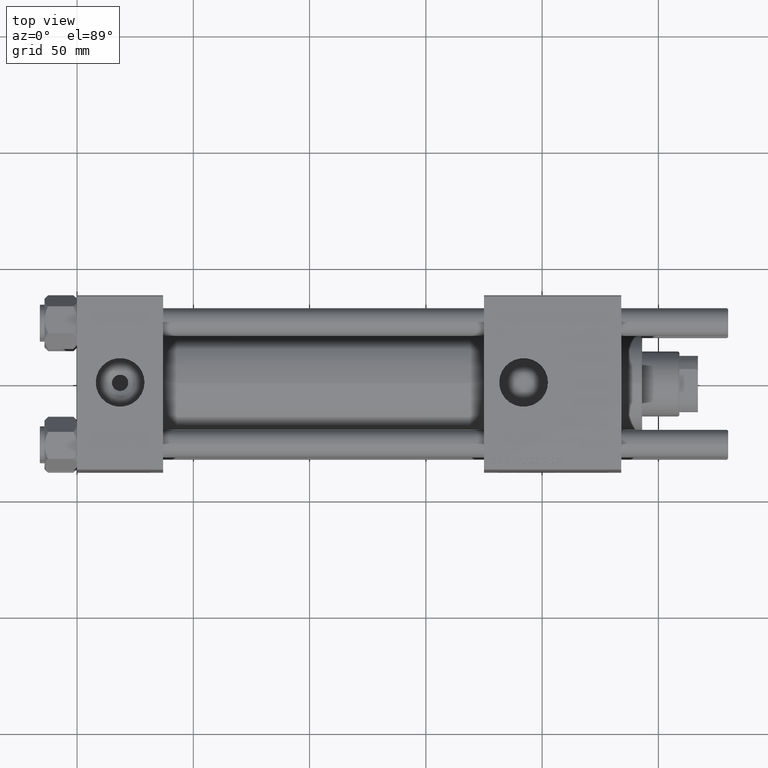
[diagram: clean part render]
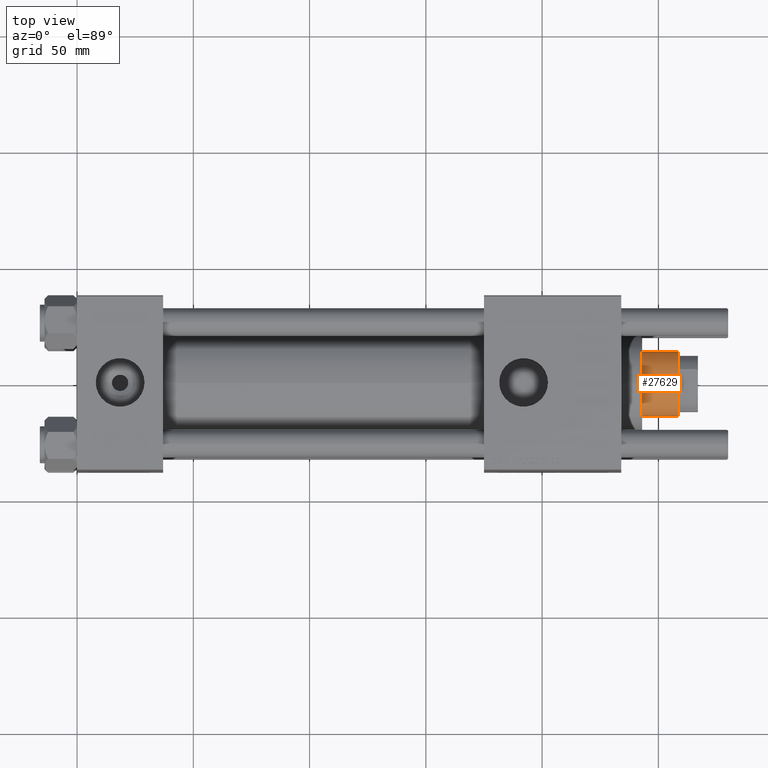
[diagram: same view with one face highlighted and labeled with its STEP entity id]
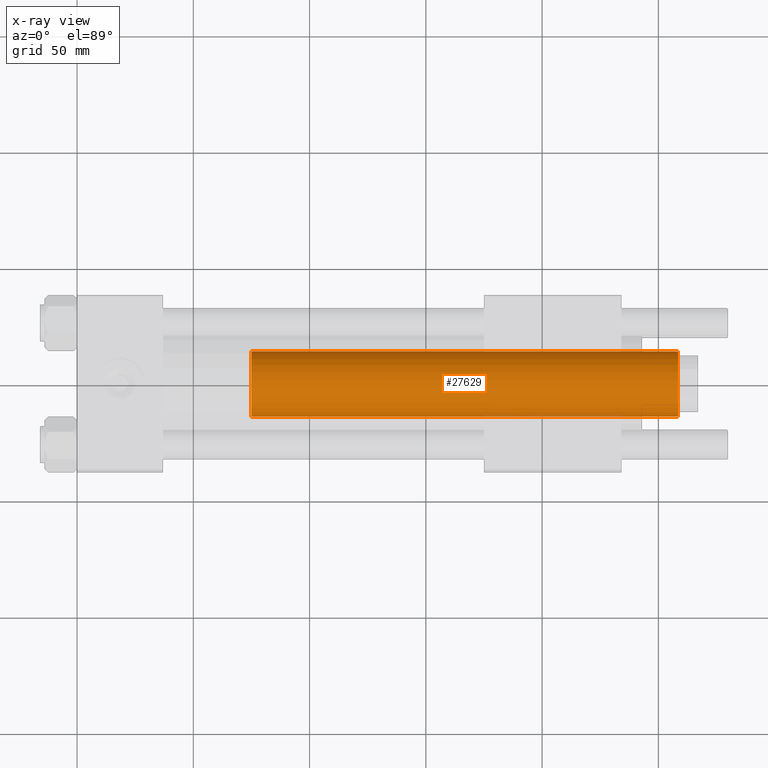
[diagram: x-ray of the same camera — body ghosted, the highlighted face saturated]
A machine part, top view. The second image highlights one B-rep face of the part: STEP entity #27629.
The next image is the same camera in x-ray: the body ghosted, the highlighted face saturated — about 1% of this face is hidden behind the body in this view.
In plain terms, the highlighted cylindrical surface (edge-blend (fillet) strip) has radius 14 mm, axis along (-1, 0, 0).
Its self-contained STEP definition (entity closure, byte-faithful):
#1076 = CYLINDRICAL_SURFACE ( 'NONE', #1990, 14.00000000000000178 ) ;
#1096 = CIRCLE ( 'NONE', #48868, 14.00000000000000178 ) ;
#1179 = CARTESIAN_POINT ( 'NONE',  ( 14.00000000000000178, 1.714505518806294835E-15, 222.0000000000000000 ) ) ;
#1644 = DIRECTION ( 'NONE',  ( -1.000000000000000000, 0.000000000000000000, 0.000000000000000000 ) ) ;
#1730 = AXIS2_PLACEMENT_3D ( 'NONE', #2218, #54295, #23509 ) ;
#1990 = AXIS2_PLACEMENT_3D ( 'NONE', #50561, #53719, #1644 ) ;
#2218 = CARTESIAN_POINT ( 'NONE',  ( 0.000000000000000000, 0.000000000000000000, 221.5000000000000000 ) ) ;
#5649 = EDGE_CURVE ( 'NONE', #42431, #36717, #39548, .T. ) ;
#9369 = VERTEX_POINT ( 'NONE', #32183 ) ;
#11943 = EDGE_CURVE ( 'NONE', #9369, #53110, #34318, .T. ) ;
#13780 = VECTOR ( 'NONE', #39766, 1000.000000000000000 ) ;
#15474 = EDGE_LOOP ( 'NONE', ( #17216, #22631, #26016, #35996 ) ) ;
#16444 = CIRCLE ( 'NONE', #1730, 14.00000000000000178 ) ;
#17216 = ORIENTED_EDGE ( 'NONE', *, *, #11943, .F. ) ;
#19779 = FACE_OUTER_BOUND ( 'NONE', #15474, .T. ) ;
#22631 = ORIENTED_EDGE ( 'NONE', *, *, #39795, .T. ) ;
#23509 = DIRECTION ( 'NONE',  ( 1.000000000000000000, 0.000000000000000000, 0.000000000000000000 ) ) ;
#25578 = EDGE_CURVE ( 'NONE', #36717, #53110, #1096, .T. ) ;
#26016 = ORIENTED_EDGE ( 'NONE', *, *, #5649, .T. ) ;
#27629 = ADVANCED_FACE ( 'NONE', ( #19779 ), #1076, .T. ) ;
#32183 = CARTESIAN_POINT ( 'NONE',  ( 14.00000000000000178, 1.714505518806294835E-15, 221.5000000000000000 ) ) ;
#34318 = LINE ( 'NONE', #1179, #13780 ) ;
#35224 = CARTESIAN_POINT ( 'NONE',  ( -14.00000000000000178, 0.000000000000000000, 222.0000000000000000 ) ) ;
#35996 = ORIENTED_EDGE ( 'NONE', *, *, #25578, .T. ) ;
#36717 = VERTEX_POINT ( 'NONE', #54099 ) ;
#39548 = LINE ( 'NONE', #35224, #52638 ) ;
#39766 = DIRECTION ( 'NONE',  ( -0.000000000000000000, -0.000000000000000000, -1.000000000000000000 ) ) ;
#39795 = EDGE_CURVE ( 'NONE', #9369, #42431, #16444, .T. ) ;
#42431 = VERTEX_POINT ( 'NONE', #49122 ) ;
#43886 = DIRECTION ( 'NONE',  ( 0.000000000000000000, 0.000000000000000000, 1.000000000000000000 ) ) ;
#46080 = CARTESIAN_POINT ( 'NONE',  ( 14.00000000000000178, 1.714505518806294835E-15, 38.00000000000000000 ) ) ;
#47916 = CARTESIAN_POINT ( 'NONE',  ( 0.000000000000000000, 0.000000000000000000, 38.00000000000000000 ) ) ;
#48868 = AXIS2_PLACEMENT_3D ( 'NONE', #47916, #43886, #56825 ) ;
#49015 = DIRECTION ( 'NONE',  ( -0.000000000000000000, -0.000000000000000000, -1.000000000000000000 ) ) ;
#49122 = CARTESIAN_POINT ( 'NONE',  ( -14.00000000000000178, 0.000000000000000000, 221.5000000000000000 ) ) ;
#50561 = CARTESIAN_POINT ( 'NONE',  ( 0.000000000000000000, 0.000000000000000000, 222.0000000000000000 ) ) ;
#52638 = VECTOR ( 'NONE', #49015, 1000.000000000000000 ) ;
#53110 = VERTEX_POINT ( 'NONE', #46080 ) ;
#53719 = DIRECTION ( 'NONE',  ( -0.000000000000000000, -0.000000000000000000, -1.000000000000000000 ) ) ;
#54099 = CARTESIAN_POINT ( 'NONE',  ( -14.00000000000000178, 0.000000000000000000, 38.00000000000000000 ) ) ;
#54295 = DIRECTION ( 'NONE',  ( 0.000000000000000000, 0.000000000000000000, -1.000000000000000000 ) ) ;
#56825 = DIRECTION ( 'NONE',  ( 1.000000000000000000, 0.000000000000000000, 0.000000000000000000 ) ) ;